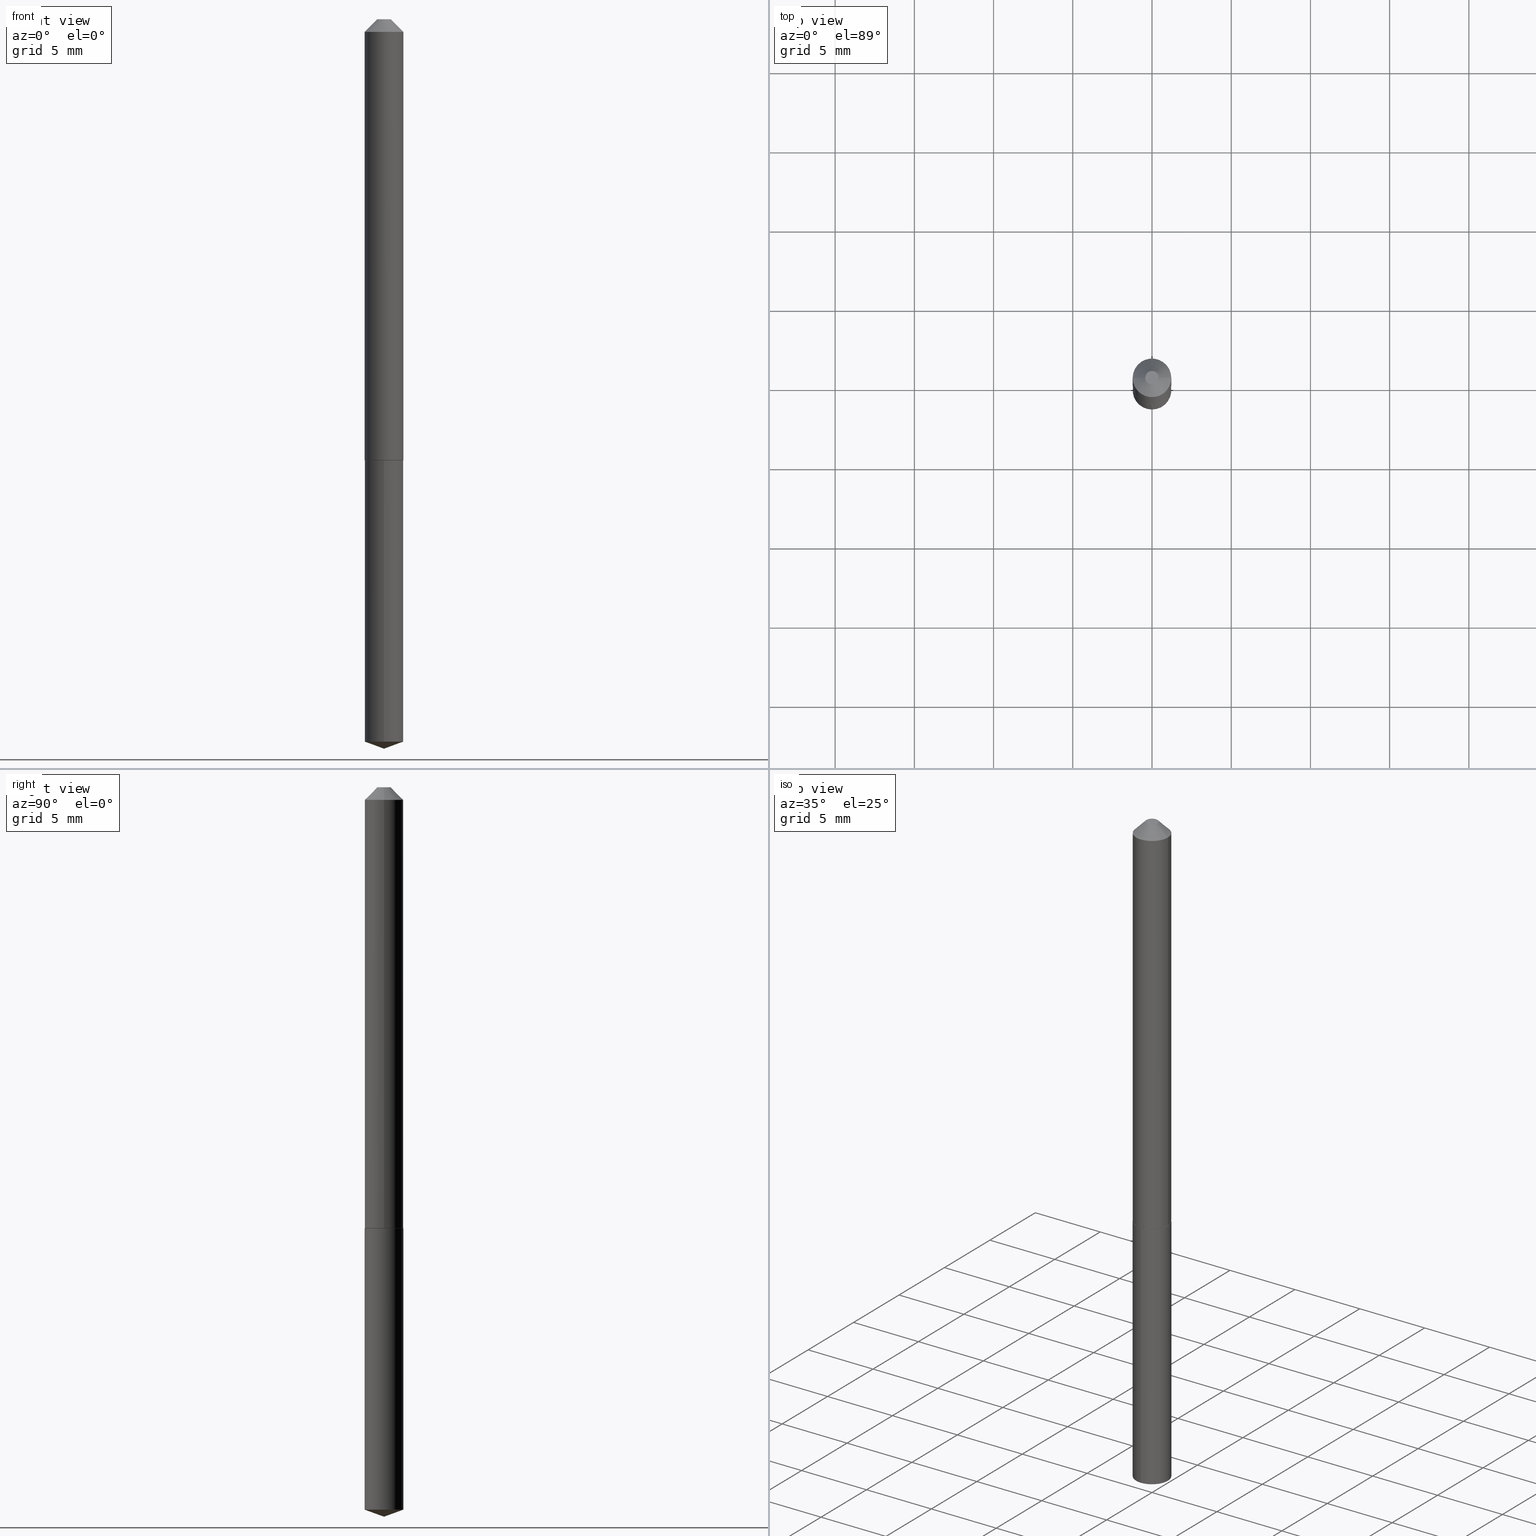
[diagram: canonical four-view strip — front | top / right | iso, engineering-drawing reading convention]
A machine part, canonical four-view strip (front | top / right | iso — engineering-drawing reading convention). The complete STEP part file that produces these views, byte-faithful:
ISO-10303-21;
HEADER;
FILE_DESCRIPTION (( 'STEP AP203' ),
    '1' );
FILE_NAME ('56041.STEP',
    '2024-04-22T19:58:35',
    ( '' ),
    ( '' ),
    'SwSTEP 2.0',
    'SolidWorks 2023',
    '' );
FILE_SCHEMA (( 'CONFIG_CONTROL_DESIGN' ));
ENDSEC;

DATA;
#1 = CYLINDRICAL_SURFACE ( 'NONE', #334, 0.04800000000000007733 ) ;
#2 = CIRCLE ( 'NONE', #217, 0.04800000000000000100 ) ;
#3 = CARTESIAN_POINT ( 'NONE',  ( 2.994835545909338814E-48, -4.275831445896991422E-34, -1.224646799147358199E-19 ) ) ;
#4 = CARTESIAN_POINT ( 'NONE',  ( 7.642090019328601786E-31, -1.091087918388490144E-16, -0.03125000000000020123 ) ) ;
#5 = DIRECTION ( 'NONE',  ( -2.445468806185136597E-29, 3.491481338843145583E-15, 1.000000000000000000 ) ) ;
#6 = PERSON_AND_ORGANIZATION ( #142, #227 ) ;
#7 = DIRECTION ( 'NONE',  ( 1.000000000000000000, -6.982962677686262766E-15, 0.000000000000000000 ) ) ;
#8 = PERSON_AND_ORGANIZATION_ROLE ( 'creator' ) ;
#9 = CARTESIAN_POINT ( 'NONE',  ( 4.389687988186070502E-29, -6.267312449180217349E-15, -1.795029428755222423 ) ) ;
#10 = EDGE_CURVE ( 'NONE', #174, #263, #87, .T. ) ;
#11 = CARTESIAN_POINT ( 'NONE',  ( 2.680233811578910199E-29, -3.826663547372088073E-15, -1.096000000000000085 ) ) ;
#12 = AXIS2_PLACEMENT_3D ( 'NONE', #111, #119, #279 ) ;
#13 = UNCERTAINTY_MEASURE_WITH_UNIT (LENGTH_MEASURE( 1.000000000000000082E-05 ), #62, 'distance_accuracy_value', 'NONE');
#14 = DIRECTION ( 'NONE',  ( 2.438088387897960049E-29, -3.491481338843145188E-15, -1.000000000000000000 ) ) ;
#15 = ORIENTED_EDGE ( 'NONE', *, *, #107, .F. ) ;
#16 = DIRECTION ( 'NONE',  ( -2.438088387897960049E-29, 3.491481338843145188E-15, 1.000000000000000000 ) ) ;
#17 = CYLINDRICAL_SURFACE ( 'NONE', #48, 0.04800000000000000100 ) ;
#18 = VECTOR ( 'NONE', #301, 39.37007874015748854 ) ;
#19 = ORIENTED_EDGE ( 'NONE', *, *, #179, .T. ) ;
#20 = CARTESIAN_POINT ( 'NONE',  ( 2.679011077175817397E-29, -3.824917806702666569E-15, -1.095500000000000140 ) ) ;
#21 = ORIENTED_EDGE ( 'NONE', *, *, #148, .F. ) ;
#22 = APPROVAL_STATUS ( 'not_yet_approved' ) ;
#23 = EDGE_CURVE ( 'NONE', #85, #52, #120, .T. ) ;
#24 = DIRECTION ( 'NONE',  ( 1.000000000000000000, -6.982962677686262766E-15, 0.000000000000000000 ) ) ;
#25 = ORIENTED_EDGE ( 'NONE', *, *, #107, .T. ) ;
#26 = DIRECTION ( 'NONE',  ( -2.445468806185136597E-29, 3.491481338843145583E-15, 1.000000000000000000 ) ) ;
#27 = CC_DESIGN_PERSON_AND_ORGANIZATION_ASSIGNMENT ( #136, #218, ( #79 ) ) ;
#28 = VECTOR ( 'NONE', #238, 39.37007874015748854 ) ;
#29 = EDGE_LOOP ( 'NONE', ( #19, #89, #384, #344 ) ) ;
#30 = DIRECTION ( 'NONE',  ( 1.000000000000000000, -6.982962677686266711E-15, 0.000000000000000000 ) ) ;
#31 = APPROVAL_PERSON_ORGANIZATION ( #73, #352, #367 ) ;
#32 = FACE_OUTER_BOUND ( 'NONE', #81, .T. ) ;
#33 = CARTESIAN_POINT ( 'NONE',  ( 0.04800000000000007733, -3.351822085289413070E-16, 2.340564852382052838E-30 ) ) ;
#34 = CARTESIAN_POINT ( 'NONE',  ( -9.184586036994922402E-28, 1.311316237898470036E-13, 37.55757874015748143 ) ) ;
#35 = DIRECTION ( 'NONE',  ( 2.445468110908040777E-29, -3.491482334519519082E-15, -1.000000000000000000 ) ) ;
#36 = ADVANCED_FACE ( 'NONE', ( #157 ), #172, .T. ) ;
#37 = CARTESIAN_POINT ( 'NONE',  ( 0.04800000000000000794, -4.384126957318825829E-16, -0.03125000000000020123 ) ) ;
#38 = AXIS2_PLACEMENT_3D ( 'NONE', #207, #359, #127 ) ;
#39 = DIRECTION ( 'NONE',  ( -2.445468806185136597E-29, 3.491481338843145583E-15, 1.000000000000000000 ) ) ;
#40 = CARTESIAN_POINT ( 'NONE',  ( -0.04750000000000010464, -3.486506520711928589E-15, -1.096000000000000085 ) ) ;
#41 = LINE ( 'NONE', #37, #288 ) ;
#42 = DATE_TIME_ROLE ( 'creation_date' ) ;
#43 = CIRCLE ( 'NONE', #176, 0.04800000000000013284 ) ;
#44 = CARTESIAN_POINT ( 'NONE',  ( 0.000000000000000000, 0.000000000000000000, 0.000000000000000000 ) ) ;
#45 = EDGE_CURVE ( 'NONE', #52, #311, #58, .T. ) ;
#46 = ORIENTED_EDGE ( 'NONE', *, *, #357, .T. ) ;
#47 = DIMENSIONAL_EXPONENTS ( 1.000000000000000000, 0.000000000000000000, 0.000000000000000000, 0.000000000000000000, 0.000000000000000000, 0.000000000000000000, 0.000000000000000000 ) ;
#48 = AXIS2_PLACEMENT_3D ( 'NONE', #146, #156, #300 ) ;
#49 = DIRECTION ( 'NONE',  ( -6.982962677686265922E-15, -1.000000000000000000, 2.845674993400273939E-15 ) ) ;
#50 = EDGE_LOOP ( 'NONE', ( #21, #61, #386, #178 ) ) ;
#51 = EDGE_CURVE ( 'NONE', #52, #231, #110, .T. ) ;
#52 = VERTEX_POINT ( 'NONE', #325 ) ;
#53 = EDGE_LOOP ( 'NONE', ( #315, #25, #145 ) ) ;
#54 = ADVANCED_FACE ( 'NONE', ( #299 ), #363, .T. ) ;
#55 = EDGE_LOOP ( 'NONE', ( #183, #339, #211, #78 ) ) ;
#56 = MECHANICAL_CONTEXT ( 'NONE', #353, 'mechanical' ) ;
#57 = ADVANCED_BREP_SHAPE_REPRESENTATION ( '56041', ( #186, #185, #242 ), #270 ) ;
#58 = LINE ( 'NONE', #180, #247 ) ;
#59 = DIRECTION ( 'NONE',  ( -2.445468806185136877E-29, 3.491481338843145188E-15, 1.000000000000000000 ) ) ;
#60 = AXIS2_PLACEMENT_3D ( 'NONE', #4, #103, #272 ) ;
#61 = ORIENTED_EDGE ( 'NONE', *, *, #193, .F. ) ;
#62 =( CONVERSION_BASED_UNIT ( 'INCH', #237 ) LENGTH_UNIT ( ) NAMED_UNIT ( #47 ) );
#63 = APPROVAL_PERSON_ORGANIZATION ( #291, #161, #261 ) ;
#64 = EDGE_CURVE ( 'NONE', #263, #229, #323, .T. ) ;
#65 = VERTEX_POINT ( 'NONE', #220 ) ;
#66 = APPLICATION_PROTOCOL_DEFINITION ( 'international standard', 'config_control_design', 1994, #353 ) ;
#67 = DIRECTION ( 'NONE',  ( 2.445468806185136597E-29, -3.491481338843145583E-15, -1.000000000000000000 ) ) ;
#68 = CARTESIAN_POINT ( 'NONE',  ( 0.04800000000000013284, -4.160100015231607876E-15, -1.095500000000000140 ) ) ;
#69 = CARTESIAN_POINT ( 'NONE',  ( -3.351822085289139434E-16, -0.04800000000000382433, -1.096000000000000085 ) ) ;
#70 = CALENDAR_DATE ( 2024, 22, 4 ) ;
#71 = CLOSED_SHELL ( 'NONE', ( #82, #167, #36, #205, #228, #159, #331, #224 ) ) ;
#72 = CARTESIAN_POINT ( 'NONE',  ( 0.01675000000000000100, -2.766630185972779012E-16, -1.224646799133602245E-19 ) ) ;
#73 = PERSON_AND_ORGANIZATION ( #142, #227 ) ;
#74 = PRODUCT_DEFINITION ( 'UNKNOWN', '', #276, #327 ) ;
#75 = CARTESIAN_POINT ( 'NONE',  ( 7.642090019328601786E-31, -1.091087918388490144E-16, -0.03125000000000020123 ) ) ;
#76 = CARTESIAN_POINT ( 'NONE',  ( -3.351822085288967856E-16, -0.04800000000000624600, -1.795029428755222201 ) ) ;
#77 = CARTESIAN_POINT ( 'NONE',  ( -0.04800000000000013284, -3.483857293537816994E-15, -1.095500000000000140 ) ) ;
#78 = ORIENTED_EDGE ( 'NONE', *, *, #282, .F. ) ;
#79 = SECURITY_CLASSIFICATION ( '', '', #190 ) ;
#80 = DIRECTION ( 'NONE',  ( -2.445468806185136597E-29, 3.491481338843145583E-15, 1.000000000000000000 ) ) ;
#81 = EDGE_LOOP ( 'NONE', ( #177, #126, #208, #200 ) ) ;
#82 = ADVANCED_FACE ( 'NONE', ( #189 ), #91, .T. ) ;
#83 = EDGE_LOOP ( 'NONE', ( #348, #260, #286, #298 ) ) ;
#84 = AXIS2_PLACEMENT_3D ( 'NONE', #335, #80, #141 ) ;
#85 = VERTEX_POINT ( 'NONE', #97 ) ;
#86 = DIRECTION ( 'NONE',  ( 6.982962677686265922E-15, 1.000000000000000000, -3.491482334519519082E-15 ) ) ;
#87 = LINE ( 'NONE', #33, #140 ) ;
#88 =( LENGTH_UNIT ( ) NAMED_UNIT ( * ) SI_UNIT ( $, .METRE. ) );
#89 = ORIENTED_EDGE ( 'NONE', *, *, #45, .T. ) ;
#90 = EDGE_CURVE ( 'NONE', #231, #158, #274, .T. ) ;
#91 = CONICAL_SURFACE ( 'NONE', #275, 0.04800000000000000794, 0.7853981633974452814 ) ;
#92 = CARTESIAN_POINT ( 'NONE',  ( 4.389687988186070502E-29, -6.267312449180217349E-15, -1.795029428755222423 ) ) ;
#93 = CARTESIAN_POINT ( 'NONE',  ( 0.000000000000000000, 0.000000000000000000, 0.000000000000000000 ) ) ;
#94 = APPLICATION_CONTEXT ( 'configuration controlled 3d designs of mechanical parts and assemblies' ) ;
#95 = CARTESIAN_POINT ( 'NONE',  ( 2.679011077175817397E-29, -3.824917806702666569E-15, -1.095500000000000140 ) ) ;
#96 = PERSON_AND_ORGANIZATION ( #142, #227 ) ;
#97 = CARTESIAN_POINT ( 'NONE',  ( 4.432410951020824837E-29, -6.328311731316628731E-15, -1.812500000000000222 ) ) ;
#98 = COORDINATED_UNIVERSAL_TIME_OFFSET ( 5, 0, .BEHIND. ) ;
#99 = EDGE_CURVE ( 'NONE', #118, #174, #43, .T. ) ;
#100 = DIRECTION ( 'NONE',  ( -2.445468110908041057E-29, 3.491482334519519082E-15, 1.000000000000000000 ) ) ;
#101 = CC_DESIGN_PERSON_AND_ORGANIZATION_ASSIGNMENT ( #6, #362, ( #74 ) ) ;
#102 = CIRCLE ( 'NONE', #12, 0.04750000000000010464 ) ;
#103 = DIRECTION ( 'NONE',  ( -2.445468806185136597E-29, 3.491481338843145583E-15, 1.000000000000000000 ) ) ;
#104 = PRODUCT_DEFINITION_SHAPE ( 'NONE', 'NONE',  #74 ) ;
#105 = DIRECTION ( 'NONE',  ( -2.445468806185136597E-29, 3.491481338843145583E-15, 1.000000000000000000 ) ) ;
#106 = PERSON_AND_ORGANIZATION ( #142, #227 ) ;
#107 = EDGE_CURVE ( 'NONE', #85, #231, #216, .T. ) ;
#108 = PLANE ( 'NONE',  #303 ) ;
#109 = APPROVAL_ROLE ( '' ) ;
#110 = CIRCLE ( 'NONE', #153, 0.04800000000000000100 ) ;
#111 = CARTESIAN_POINT ( 'NONE',  ( 2.680233811578910199E-29, -3.826663547372088073E-15, -1.096000000000000085 ) ) ;
#112 = EDGE_LOOP ( 'NONE', ( #194, #255, #125, #319 ) ) ;
#113 = FACE_OUTER_BOUND ( 'NONE', #83, .T. ) ;
#114 = CARTESIAN_POINT ( 'NONE',  ( 2.680233811578910199E-29, -3.826663547372088073E-15, -1.096000000000000085 ) ) ;
#115 = CARTESIAN_POINT ( 'NONE',  ( 0.04750000000000010464, -4.158354274562186373E-15, -1.096000000000000085 ) ) ;
#116 = LOCAL_TIME ( 15, 58, 35.00000000000000000, #98 ) ;
#117 = CARTESIAN_POINT ( 'NONE',  ( -0.04800000000000013284, -3.483857293537816994E-15, -1.095500000000000140 ) ) ;
#118 = VERTEX_POINT ( 'NONE', #77 ) ;
#119 = DIRECTION ( 'NONE',  ( -2.445468806185136597E-29, 3.491481338843145583E-15, 1.000000000000000000 ) ) ;
#120 = LINE ( 'NONE', #293, #28 ) ;
#121 = FACE_OUTER_BOUND ( 'NONE', #376, .T. ) ;
#122 = VECTOR ( 'NONE', #59, 39.37007874015748143 ) ;
#123 = VERTEX_POINT ( 'NONE', #40 ) ;
#124 = CARTESIAN_POINT ( 'NONE',  ( 7.642090019328601786E-31, -1.091087918388490144E-16, -0.03125000000000020123 ) ) ;
#125 = ORIENTED_EDGE ( 'NONE', *, *, #10, .T. ) ;
#126 = ORIENTED_EDGE ( 'NONE', *, *, #259, .T. ) ;
#127 = DIRECTION ( 'NONE',  ( -6.982962677686266711E-15, -1.000000000000000000, 3.475157955500730864E-15 ) ) ;
#128 = CIRCLE ( 'NONE', #201, 0.04800000000000000100 ) ;
#129 = DIRECTION ( 'NONE',  ( 1.000000000000000000, -6.982962677686265922E-15, 4.876176775795935793E-29 ) ) ;
#130 = AXIS2_PLACEMENT_3D ( 'NONE', #20, #203, #24 ) ;
#131 = EDGE_CURVE ( 'NONE', #229, #263, #355, .T. ) ;
#132 = CALENDAR_DATE ( 2024, 22, 4 ) ;
#133 = DIRECTION ( 'NONE',  ( -0.7071067811865453523, 2.468850131082234184E-15, -0.7071067811865496822 ) ) ;
#134 = CARTESIAN_POINT ( 'NONE',  ( 4.432410951020824837E-29, -6.328311731316628731E-15, -1.812500000000000222 ) ) ;
#135 = DATE_AND_TIME ( #70, #116 ) ;
#136 = PERSON_AND_ORGANIZATION ( #142, #227 ) ;
#137 = APPROVAL_PERSON_ORGANIZATION ( #330, #252, #109 ) ;
#138 = CALENDAR_DATE ( 2024, 22, 4 ) ;
#139 = APPROVAL_DATE_TIME ( #135, #352 ) ;
#140 = VECTOR ( 'NONE', #290, 39.37007874015748143 ) ;
#141 = DIRECTION ( 'NONE',  ( 1.000000000000000000, -6.982962677686266711E-15, 4.876219677916620331E-29 ) ) ;
#142 = PERSON ( 'UNSPECIFIED', 'UNSPECIFIED', 'UNSPECIFIED', ('UNSPECIFIED'), ('UNSPECIFIED'), ('UNSPECIFIED') ) ;
#143 = ORIENTED_EDGE ( 'NONE', *, *, #373, .F. ) ;
#144 = CC_DESIGN_PERSON_AND_ORGANIZATION_ASSIGNMENT ( #96, #215, ( #171 ) ) ;
#145 = ORIENTED_EDGE ( 'NONE', *, *, #51, .F. ) ;
#146 = CARTESIAN_POINT ( 'NONE',  ( 2.680233811578910199E-29, -3.826663547372088073E-15, -1.096000000000000085 ) ) ;
#147 = ORIENTED_EDGE ( 'NONE', *, *, #175, .T. ) ;
#148 = EDGE_CURVE ( 'NONE', #284, #263, #41, .T. ) ;
#149 = EDGE_LOOP ( 'NONE', ( #46, #147, #143, #196 ) ) ;
#150 = FACE_OUTER_BOUND ( 'NONE', #50, .T. ) ;
#151 = EDGE_LOOP ( 'NONE', ( #15, #389, #321 ) ) ;
#152 = DIRECTION ( 'NONE',  ( 1.000000000000000000, -6.982962677686262766E-15, 0.000000000000000000 ) ) ;
#153 = AXIS2_PLACEMENT_3D ( 'NONE', #92, #295, #155 ) ;
#154 = EDGE_CURVE ( 'NONE', #284, #65, #160, .T. ) ;
#155 = DIRECTION ( 'NONE',  ( -6.982962677686265922E-15, -1.000000000000000000, 5.691349986800547879E-15 ) ) ;
#156 = DIRECTION ( 'NONE',  ( -2.445468110908041057E-29, 3.491482334519519082E-15, 1.000000000000000000 ) ) ;
#157 = FACE_OUTER_BOUND ( 'NONE', #149, .T. ) ;
#158 = VERTEX_POINT ( 'NONE', #69 ) ;
#159 = ADVANCED_FACE ( 'NONE', ( #245 ), #165, .T. ) ;
#160 = CIRCLE ( 'NONE', #257, 0.01674999999999999753 ) ;
#161 = APPROVAL ( #22, 'UNSPECIFIED' ) ;
#162 = PERSON_AND_ORGANIZATION_ROLE ( 'design_supplier' ) ;
#163 = DIRECTION ( 'NONE',  ( -6.982962677686266711E-15, -1.000000000000000000, 3.475157955500730864E-15 ) ) ;
#164 = DATE_AND_TIME ( #336, #297 ) ;
#165 = CYLINDRICAL_SURFACE ( 'NONE', #264, 0.04800000000000007733 ) ;
#166 = CALENDAR_DATE ( 2024, 22, 4 ) ;
#167 = ADVANCED_FACE ( 'NONE', ( #308 ), #1, .T. ) ;
#168 = AXIS2_PLACEMENT_3D ( 'NONE', #206, #268, #354 ) ;
#169 = LOCAL_TIME ( 15, 58, 35.00000000000000000, #280 ) ;
#170 = DIRECTION ( 'NONE',  ( -2.445468806185136597E-29, 3.491481338843145583E-15, 1.000000000000000000 ) ) ;
#171 = PRODUCT ( '56041', '56041', '', ( #56 ) ) ;
#172 = CONICAL_SURFACE ( 'NONE', #168, 0.04800000000000013284, 0.7853981633974397303 ) ;
#173 = FACE_OUTER_BOUND ( 'NONE', #314, .T. ) ;
#174 = VERTEX_POINT ( 'NONE', #358 ) ;
#175 = EDGE_CURVE ( 'NONE', #123, #118, #342, .T. ) ;
#176 = AXIS2_PLACEMENT_3D ( 'NONE', #95, #39, #7 ) ;
#177 = ORIENTED_EDGE ( 'NONE', *, *, #175, .F. ) ;
#178 = ORIENTED_EDGE ( 'NONE', *, *, #131, .T. ) ;
#179 = EDGE_CURVE ( 'NONE', #231, #52, #128, .T. ) ;
#180 = CARTESIAN_POINT ( 'NONE',  ( 3.410605131648748190E-16, 0.04799999999999617073, -1.096000000000000307 ) ) ;
#181 = AXIS2_PLACEMENT_3D ( 'NONE', #34, #269, #163 ) ;
#182 = CIRCLE ( 'NONE', #191, 0.04800000000000013284 ) ;
#183 = ORIENTED_EDGE ( 'NONE', *, *, #154, .F. ) ;
#184 = DIRECTION ( 'NONE',  ( -2.445468110908041057E-29, 3.491482334519519082E-15, 1.000000000000000000 ) ) ;
#185 = MANIFOLD_SOLID_BREP ( 'Body-Move/Copy2[2]', #71 ) ;
#186 = MANIFOLD_SOLID_BREP ( 'Body-Move/Copy2[1]', #197 ) ;
#187 = CC_DESIGN_PERSON_AND_ORGANIZATION_ASSIGNMENT ( #106, #162, ( #276 ) ) ;
#188 = DATE_AND_TIME ( #138, #364 ) ;
#189 = FACE_OUTER_BOUND ( 'NONE', #55, .T. ) ;
#190 = SECURITY_CLASSIFICATION_LEVEL ( 'unclassified' ) ;
#191 = AXIS2_PLACEMENT_3D ( 'NONE', #294, #26, #152 ) ;
#192 = ORIENTED_EDGE ( 'NONE', *, *, #373, .T. ) ;
#193 = EDGE_CURVE ( 'NONE', #65, #284, #253, .T. ) ;
#194 = ORIENTED_EDGE ( 'NONE', *, *, #383, .F. ) ;
#195 = CC_DESIGN_DATE_AND_TIME_ASSIGNMENT ( #164, #273, ( #79 ) ) ;
#196 = ORIENTED_EDGE ( 'NONE', *, *, #365, .F. ) ;
#197 = CLOSED_SHELL ( 'NONE', ( #302, #310, #54, #230, #329 ) ) ;
#198 = CC_DESIGN_APPROVAL ( #161, ( #74 ) ) ;
#199 = VERTEX_POINT ( 'NONE', #115 ) ;
#200 = ORIENTED_EDGE ( 'NONE', *, *, #99, .F. ) ;
#201 = AXIS2_PLACEMENT_3D ( 'NONE', #9, #338, #375 ) ;
#202 = CONICAL_SURFACE ( 'NONE', #130, 0.04800000000000013284, 0.7853981633974397303 ) ;
#203 = DIRECTION ( 'NONE',  ( -2.445468806185136597E-29, 3.491481338843145583E-15, 1.000000000000000000 ) ) ;
#204 = ORIENTED_EDGE ( 'NONE', *, *, #383, .T. ) ;
#205 = ADVANCED_FACE ( 'NONE', ( #369 ), #108, .F. ) ;
#206 = CARTESIAN_POINT ( 'NONE',  ( 2.679011077175817397E-29, -3.824917806702666569E-15, -1.095500000000000140 ) ) ;
#207 = CARTESIAN_POINT ( 'NONE',  ( -9.184586036994922402E-28, 1.311316237898470036E-13, 37.55757874015748143 ) ) ;
#208 = ORIENTED_EDGE ( 'NONE', *, *, #365, .T. ) ;
#209 = CARTESIAN_POINT ( 'NONE',  ( -0.04800000000000007733, 3.410605131648486387E-16, -2.361088843322358304E-30 ) ) ;
#210 = VECTOR ( 'NONE', #100, 39.37007874015748143 ) ;
#211 = ORIENTED_EDGE ( 'NONE', *, *, #64, .T. ) ;
#212 = DIRECTION ( 'NONE',  ( 0.000000000000000000, 0.000000000000000000, 1.000000000000000000 ) ) ;
#213 = EDGE_CURVE ( 'NONE', #311, #158, #304, .T. ) ;
#214 = CARTESIAN_POINT ( 'NONE',  ( 7.642090019328601786E-31, -1.091087918388490144E-16, -0.03125000000000020123 ) ) ;
#215 = PERSON_AND_ORGANIZATION_ROLE ( 'design_owner' ) ;
#216 = LINE ( 'NONE', #134, #18 ) ;
#217 = AXIS2_PLACEMENT_3D ( 'NONE', #11, #368, #377 ) ;
#218 = PERSON_AND_ORGANIZATION_ROLE ( 'classification_officer' ) ;
#219 = DIRECTION ( 'NONE',  ( -2.445468806185136597E-29, 3.491481338843145583E-15, 1.000000000000000000 ) ) ;
#220 = CARTESIAN_POINT ( 'NONE',  ( -0.01675000000000000100, 1.715190207706684202E-16, -1.224646799157442850E-19 ) ) ;
#221 = APPROVAL_DATE_TIME ( #306, #252 ) ;
#222 = AXIS2_PLACEMENT_3D ( 'NONE', #226, #312, #49 ) ;
#223 = DIRECTION ( 'NONE',  ( -0.7071067811865414665, 7.493145998870332072E-15, 0.7071067811865535679 ) ) ;
#224 = ADVANCED_FACE ( 'NONE', ( #173 ), #378, .F. ) ;
#225 = ORIENTED_EDGE ( 'NONE', *, *, #64, .F. ) ;
#226 = CARTESIAN_POINT ( 'NONE',  ( 2.680233811578910199E-29, -3.826663547372088073E-15, -1.096000000000000085 ) ) ;
#227 = ORGANIZATION ( 'UNSPECIFIED', 'UNSPECIFIED', '' ) ;
#228 = ADVANCED_FACE ( 'NONE', ( #32 ), #202, .T. ) ;
#229 = VERTEX_POINT ( 'NONE', #382 ) ;
#230 = ADVANCED_FACE ( 'NONE', ( #113 ), #371, .T. ) ;
#231 = VERTEX_POINT ( 'NONE', #76 ) ;
#232 = FACE_OUTER_BOUND ( 'NONE', #151, .T. ) ;
#233 = VECTOR ( 'NONE', #322, 39.37007874015748143 ) ;
#234 = ORIENTED_EDGE ( 'NONE', *, *, #240, .T. ) ;
#235 = DIRECTION ( 'NONE',  ( -1.000000000000000000, 6.982962677686266711E-15, 0.000000000000000000 ) ) ;
#236 = ORIENTED_EDGE ( 'NONE', *, *, #10, .F. ) ;
#237 = LENGTH_MEASURE_WITH_UNIT ( LENGTH_MEASURE( 0.02539999999999999897 ), #88 );
#238 = DIRECTION ( 'NONE',  ( 6.676917655467966551E-15, 0.9396926207859094271, 0.3420201433256654933 ) ) ;
#239 = CARTESIAN_POINT ( 'NONE',  ( 2.680233811578910199E-29, -3.826663547372088073E-15, -1.096000000000000085 ) ) ;
#240 = EDGE_CURVE ( 'NONE', #158, #311, #2, .T. ) ;
#241 = AXIS2_PLACEMENT_3D ( 'NONE', #75, #219, #305 ) ;
#242 = AXIS2_PLACEMENT_3D ( 'NONE', #93, #212, #326 ) ;
#243 = CARTESIAN_POINT ( 'NONE',  ( -3.351822085289139434E-16, -0.04800000000000382433, -1.096000000000000085 ) ) ;
#244 = APPROVAL_STATUS ( 'not_yet_approved' ) ;
#245 = FACE_OUTER_BOUND ( 'NONE', #112, .T. ) ;
#246 = PERSON_AND_ORGANIZATION ( #142, #227 ) ;
#247 = VECTOR ( 'NONE', #184, 39.37007874015748143 ) ;
#248 = AXIS2_PLACEMENT_3D ( 'NONE', #124, #388, #235 ) ;
#249 = DIRECTION ( 'NONE',  ( -1.000000000000000000, 6.982962677686266711E-15, 0.000000000000000000 ) ) ;
#250 = COORDINATED_UNIVERSAL_TIME_OFFSET ( 5, 0, .BEHIND. ) ;
#251 = COORDINATED_UNIVERSAL_TIME_OFFSET ( 5, 0, .BEHIND. ) ;
#252 = APPROVAL ( #307, 'UNSPECIFIED' ) ;
#253 = CIRCLE ( 'NONE', #84, 0.01674999999999999753 ) ;
#254 = LOCAL_TIME ( 15, 58, 35.00000000000000000, #250 ) ;
#255 = ORIENTED_EDGE ( 'NONE', *, *, #99, .T. ) ;
#256 = DIRECTION ( 'NONE',  ( 1.000000000000000000, -6.982962677686265922E-15, 4.876176775795935793E-29 ) ) ;
#257 = AXIS2_PLACEMENT_3D ( 'NONE', #3, #5, #361 ) ;
#258 = AXIS2_PLACEMENT_3D ( 'NONE', #287, #14, #292 ) ;
#259 = EDGE_CURVE ( 'NONE', #123, #199, #102, .T. ) ;
#260 = ORIENTED_EDGE ( 'NONE', *, *, #51, .T. ) ;
#261 = APPROVAL_ROLE ( '' ) ;
#262 = CARTESIAN_POINT ( 'NONE',  ( 2.680233811578910199E-29, -3.826663547372088073E-15, -1.096000000000000085 ) ) ;
#263 = VERTEX_POINT ( 'NONE', #337 ) ;
#264 = AXIS2_PLACEMENT_3D ( 'NONE', #366, #105, #333 ) ;
#265 = AXIS2_PLACEMENT_3D ( 'NONE', #320, #349, #30 ) ;
#266 = ORIENTED_EDGE ( 'NONE', *, *, #357, .F. ) ;
#267 = PLANE ( 'NONE',  #313 ) ;
#268 = DIRECTION ( 'NONE',  ( -2.445468806185136597E-29, 3.491481338843145583E-15, 1.000000000000000000 ) ) ;
#269 = DIRECTION ( 'NONE',  ( -2.445468110908041057E-29, 3.491482334519519082E-15, 1.000000000000000000 ) ) ;
#270 =( GEOMETRIC_REPRESENTATION_CONTEXT ( 3 ) GLOBAL_UNCERTAINTY_ASSIGNED_CONTEXT ( ( #13 ) ) GLOBAL_UNIT_ASSIGNED_CONTEXT ( ( #62, #390, #318 ) ) REPRESENTATION_CONTEXT ( 'NONE', 'WORKASPACE' ) );
#271 = DIRECTION ( 'NONE',  ( 0.7071067811865453523, -7.319954787623248157E-15, -0.7071067811865496822 ) ) ;
#272 = DIRECTION ( 'NONE',  ( 1.000000000000000000, -6.982962677686266711E-15, 0.000000000000000000 ) ) ;
#273 = DATE_TIME_ROLE ( 'classification_date' ) ;
#274 = LINE ( 'NONE', #243, #210 ) ;
#275 = AXIS2_PLACEMENT_3D ( 'NONE', #214, #67, #249 ) ;
#276 = PRODUCT_DEFINITION_FORMATION_WITH_SPECIFIED_SOURCE ( 'ANY', '', #171, .NOT_KNOWN. ) ;
#277 = DATE_AND_TIME ( #132, #254 ) ;
#278 = CARTESIAN_POINT ( 'NONE',  ( -0.04800000000000000794, 2.260734166900918612E-16, -0.03125000000000020123 ) ) ;
#279 = DIRECTION ( 'NONE',  ( 1.000000000000000000, -6.982962677686266711E-15, 0.000000000000000000 ) ) ;
#280 = COORDINATED_UNIVERSAL_TIME_OFFSET ( 5, 0, .BEHIND. ) ;
#281 = LINE ( 'NONE', #278, #341 ) ;
#282 = EDGE_CURVE ( 'NONE', #65, #229, #281, .T. ) ;
#283 = DIRECTION ( 'NONE',  ( -2.445468110908041057E-29, 3.491482334519519082E-15, 1.000000000000000000 ) ) ;
#284 = VERTEX_POINT ( 'NONE', #72 ) ;
#285 = CONICAL_SURFACE ( 'NONE', #248, 0.04800000000000000794, 0.7853981633974452814 ) ;
#286 = ORIENTED_EDGE ( 'NONE', *, *, #90, .T. ) ;
#287 = CARTESIAN_POINT ( 'NONE',  ( 1.497417772954669407E-48, -2.137915722948495711E-34, -6.123233995736790996E-20 ) ) ;
#288 = VECTOR ( 'NONE', #271, 39.37007874015748143 ) ;
#289 = CC_DESIGN_APPROVAL ( #252, ( #79 ) ) ;
#290 = DIRECTION ( 'NONE',  ( -2.445468806185136877E-29, 3.491481338843145188E-15, 1.000000000000000000 ) ) ;
#291 = PERSON_AND_ORGANIZATION ( #142, #227 ) ;
#292 = DIRECTION ( 'NONE',  ( -1.000000000000000000, 6.982962677686265922E-15, -4.876176775795935793E-29 ) ) ;
#293 = CARTESIAN_POINT ( 'NONE',  ( 4.432412488432314667E-29, -6.328309548794017610E-15, -1.812500000000000222 ) ) ;
#294 = CARTESIAN_POINT ( 'NONE',  ( 2.679011077175817397E-29, -3.824917806702666569E-15, -1.095500000000000140 ) ) ;
#295 = DIRECTION ( 'NONE',  ( -2.445468110908041057E-29, 3.491482334519519082E-15, 1.000000000000000000 ) ) ;
#296 = LINE ( 'NONE', #209, #122 ) ;
#297 = LOCAL_TIME ( 15, 58, 35.00000000000000000, #251 ) ;
#298 = ORIENTED_EDGE ( 'NONE', *, *, #213, .F. ) ;
#299 = FACE_OUTER_BOUND ( 'NONE', #53, .T. ) ;
#300 = DIRECTION ( 'NONE',  ( -6.982962677686265922E-15, -1.000000000000000000, 2.845674993400273939E-15 ) ) ;
#301 = DIRECTION ( 'NONE',  ( -6.561838499445200852E-15, -0.9396926207859070956, 0.3420201433256720991 ) ) ;
#302 = ADVANCED_FACE ( 'NONE', ( #345 ), #17, .T. ) ;
#303 = AXIS2_PLACEMENT_3D ( 'NONE', #114, #16, #256 ) ;
#304 = CIRCLE ( 'NONE', #222, 0.04800000000000000100 ) ;
#305 = DIRECTION ( 'NONE',  ( 1.000000000000000000, -6.982962677686266711E-15, 0.000000000000000000 ) ) ;
#306 = DATE_AND_TIME ( #166, #169 ) ;
#307 = APPROVAL_STATUS ( 'not_yet_approved' ) ;
#308 = FACE_OUTER_BOUND ( 'NONE', #380, .T. ) ;
#309 = APPROVAL_DATE_TIME ( #188, #161 ) ;
#310 = ADVANCED_FACE ( 'NONE', ( #232 ), #374, .T. ) ;
#311 = VERTEX_POINT ( 'NONE', #347 ) ;
#312 = DIRECTION ( 'NONE',  ( -2.445468110908041057E-29, 3.491482334519519082E-15, 1.000000000000000000 ) ) ;
#313 = AXIS2_PLACEMENT_3D ( 'NONE', #239, #35, #86 ) ;
#314 = EDGE_LOOP ( 'NONE', ( #343, #350 ) ) ;
#315 = ORIENTED_EDGE ( 'NONE', *, *, #23, .F. ) ;
#316 = ORIENTED_EDGE ( 'NONE', *, *, #259, .F. ) ;
#317 = EDGE_LOOP ( 'NONE', ( #266, #316 ) ) ;
#318 =( NAMED_UNIT ( * ) SI_UNIT ( $, .STERADIAN. ) SOLID_ANGLE_UNIT ( ) );
#319 = ORIENTED_EDGE ( 'NONE', *, *, #131, .F. ) ;
#320 = CARTESIAN_POINT ( 'NONE',  ( 2.680233811578910199E-29, -3.826663547372088073E-15, -1.096000000000000085 ) ) ;
#321 = ORIENTED_EDGE ( 'NONE', *, *, #179, .F. ) ;
#322 = DIRECTION ( 'NONE',  ( 0.7071067811865414665, -2.468850131082193557E-15, 0.7071067811865535679 ) ) ;
#323 = CIRCLE ( 'NONE', #60, 0.04800000000000000794 ) ;
#324 = CC_DESIGN_APPROVAL ( #352, ( #276 ) ) ;
#325 = CARTESIAN_POINT ( 'NONE',  ( 3.410605131648918288E-16, 0.04799999999999372130, -1.795029428755222645 ) ) ;
#326 = DIRECTION ( 'NONE',  ( 1.000000000000000000, 0.000000000000000000, 0.000000000000000000 ) ) ;
#327 = DESIGN_CONTEXT ( 'detailed design', #94, 'design' ) ;
#328 = APPLICATION_PROTOCOL_DEFINITION ( 'international standard', 'config_control_design', 1994, #94 ) ;
#329 = ADVANCED_FACE ( 'NONE', ( #121 ), #267, .F. ) ;
#330 = PERSON_AND_ORGANIZATION ( #142, #227 ) ;
#331 = ADVANCED_FACE ( 'NONE', ( #150 ), #285, .T. ) ;
#332 = DIRECTION ( 'NONE',  ( -6.982962677686265922E-15, -1.000000000000000000, 2.845674993400273939E-15 ) ) ;
#333 = DIRECTION ( 'NONE',  ( 1.000000000000000000, -6.982962677686265922E-15, 4.876176775795935793E-29 ) ) ;
#334 = AXIS2_PLACEMENT_3D ( 'NONE', #44, #170, #129 ) ;
#335 = CARTESIAN_POINT ( 'NONE',  ( 2.994835545909338814E-48, -4.275831445896991422E-34, -1.224646799147358199E-19 ) ) ;
#336 = CALENDAR_DATE ( 2024, 22, 4 ) ;
#337 = CARTESIAN_POINT ( 'NONE',  ( 0.04800000000000000794, -4.442910003677899146E-16, -0.03125000000000020123 ) ) ;
#338 = DIRECTION ( 'NONE',  ( -2.445468110908041057E-29, 3.491482334519519082E-15, 1.000000000000000000 ) ) ;
#339 = ORIENTED_EDGE ( 'NONE', *, *, #148, .T. ) ;
#340 = CC_DESIGN_DATE_AND_TIME_ASSIGNMENT ( #277, #42, ( #74 ) ) ;
#341 = VECTOR ( 'NONE', #133, 39.37007874015748143 ) ;
#342 = LINE ( 'NONE', #117, #372 ) ;
#343 = ORIENTED_EDGE ( 'NONE', *, *, #193, .T. ) ;
#344 = ORIENTED_EDGE ( 'NONE', *, *, #90, .F. ) ;
#345 = FACE_OUTER_BOUND ( 'NONE', #29, .T. ) ;
#346 = ORIENTED_EDGE ( 'NONE', *, *, #213, .T. ) ;
#347 = CARTESIAN_POINT ( 'NONE',  ( 3.410605131648921246E-16, 0.04799999999999618461, -1.096000000000000307 ) ) ;
#348 = ORIENTED_EDGE ( 'NONE', *, *, #45, .F. ) ;
#349 = DIRECTION ( 'NONE',  ( -2.445468806185136597E-29, 3.491481338843145583E-15, 1.000000000000000000 ) ) ;
#350 = ORIENTED_EDGE ( 'NONE', *, *, #154, .T. ) ;
#351 = LINE ( 'NONE', #68, #233 ) ;
#352 = APPROVAL ( #244, 'UNSPECIFIED' ) ;
#353 = APPLICATION_CONTEXT ( 'configuration controlled 3d designs of mechanical parts and assemblies' ) ;
#354 = DIRECTION ( 'NONE',  ( 1.000000000000000000, -6.982962677686262766E-15, 0.000000000000000000 ) ) ;
#355 = CIRCLE ( 'NONE', #241, 0.04800000000000000794 ) ;
#356 = AXIS2_PLACEMENT_3D ( 'NONE', #262, #283, #332 ) ;
#357 = EDGE_CURVE ( 'NONE', #199, #123, #385, .T. ) ;
#358 = CARTESIAN_POINT ( 'NONE',  ( 0.04800000000000013284, -4.160100015231607876E-15, -1.095500000000000140 ) ) ;
#359 = DIRECTION ( 'NONE',  ( -2.445468110908041057E-29, 3.491482334519519082E-15, 1.000000000000000000 ) ) ;
#360 = CC_DESIGN_PERSON_AND_ORGANIZATION_ASSIGNMENT ( #246, #8, ( #276 ) ) ;
#361 = DIRECTION ( 'NONE',  ( 1.000000000000000000, -6.982962677686266711E-15, 4.876219677916620331E-29 ) ) ;
#362 = PERSON_AND_ORGANIZATION_ROLE ( 'creator' ) ;
#363 = CONICAL_SURFACE ( 'NONE', #181, 108.1684023407331239, 1.221730476396030607 ) ;
#364 = LOCAL_TIME ( 15, 58, 35.00000000000000000, #381 ) ;
#365 = EDGE_CURVE ( 'NONE', #199, #174, #351, .T. ) ;
#366 = CARTESIAN_POINT ( 'NONE',  ( 0.000000000000000000, 0.000000000000000000, 0.000000000000000000 ) ) ;
#367 = APPROVAL_ROLE ( '' ) ;
#368 = DIRECTION ( 'NONE',  ( -2.445468110908041057E-29, 3.491482334519519082E-15, 1.000000000000000000 ) ) ;
#369 = FACE_OUTER_BOUND ( 'NONE', #317, .T. ) ;
#370 = SHAPE_DEFINITION_REPRESENTATION ( #104, #57 ) ;
#371 = CYLINDRICAL_SURFACE ( 'NONE', #356, 0.04800000000000000100 ) ;
#372 = VECTOR ( 'NONE', #223, 39.37007874015748143 ) ;
#373 = EDGE_CURVE ( 'NONE', #174, #118, #182, .T. ) ;
#374 = CONICAL_SURFACE ( 'NONE', #38, 108.1684023407331239, 1.221730476396030607 ) ;
#375 = DIRECTION ( 'NONE',  ( -6.982962677686265922E-15, -1.000000000000000000, 5.691349986800547879E-15 ) ) ;
#376 = EDGE_LOOP ( 'NONE', ( #234, #346 ) ) ;
#377 = DIRECTION ( 'NONE',  ( -6.982962677686265922E-15, -1.000000000000000000, 2.845674993400273939E-15 ) ) ;
#378 = PLANE ( 'NONE',  #258 ) ;
#379 = CC_DESIGN_SECURITY_CLASSIFICATION ( #79, ( #276 ) ) ;
#380 = EDGE_LOOP ( 'NONE', ( #192, #204, #225, #236 ) ) ;
#381 = COORDINATED_UNIVERSAL_TIME_OFFSET ( 5, 0, .BEHIND. ) ;
#382 = CARTESIAN_POINT ( 'NONE',  ( -0.04800000000000000794, -1.625952786105907865E-15, -0.03125000000000020123 ) ) ;
#383 = EDGE_CURVE ( 'NONE', #118, #229, #296, .T. ) ;
#384 = ORIENTED_EDGE ( 'NONE', *, *, #240, .F. ) ;
#385 = CIRCLE ( 'NONE', #265, 0.04750000000000010464 ) ;
#386 = ORIENTED_EDGE ( 'NONE', *, *, #282, .T. ) ;
#387 = PRODUCT_RELATED_PRODUCT_CATEGORY ( 'detail', '', ( #171 ) ) ;
#388 = DIRECTION ( 'NONE',  ( 2.445468806185136597E-29, -3.491481338843145583E-15, -1.000000000000000000 ) ) ;
#389 = ORIENTED_EDGE ( 'NONE', *, *, #23, .T. ) ;
#390 =( NAMED_UNIT ( * ) PLANE_ANGLE_UNIT ( ) SI_UNIT ( $, .RADIAN. ) );
ENDSEC;
END-ISO-10303-21;
